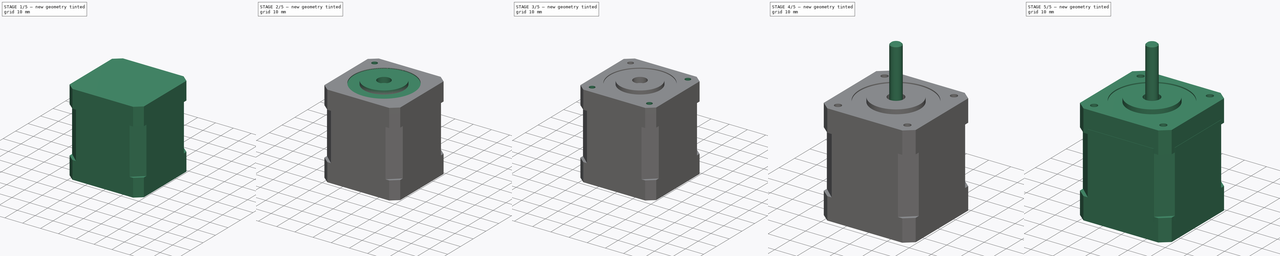
[diagram: build sequence overview — one tinted view per stage of 5, left to right]
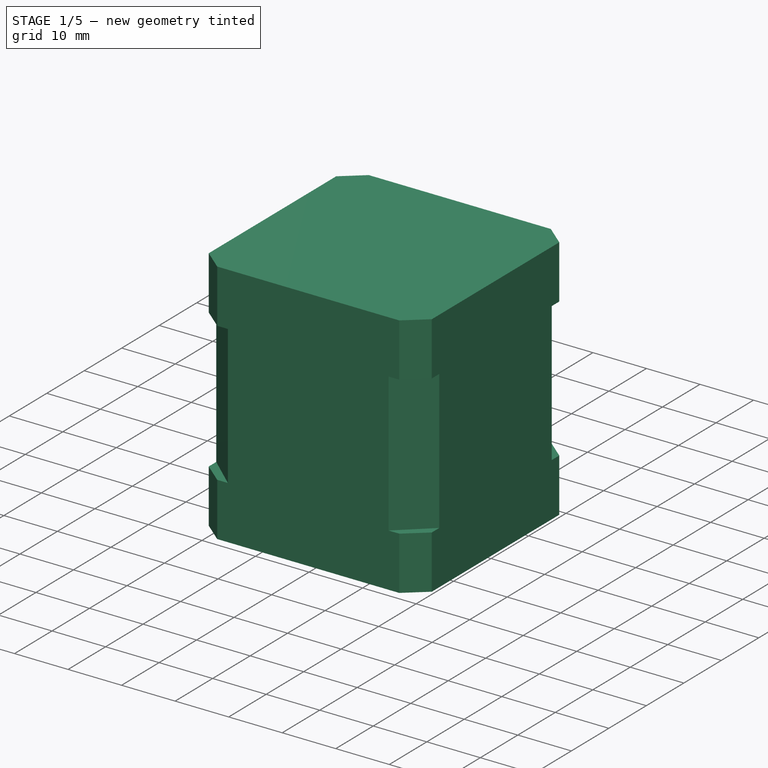
[diagram: stage 1 of 5 — iso view after this stage's code; geometry added in this stage tinted green]
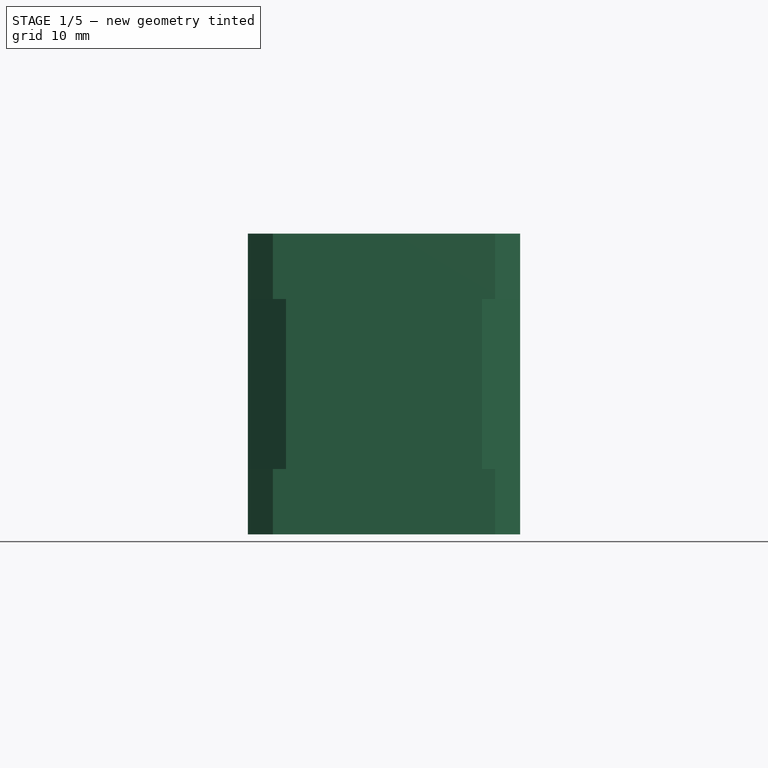
[diagram: stage 1 of 5 — front view after this stage's code; geometry added in this stage tinted green]
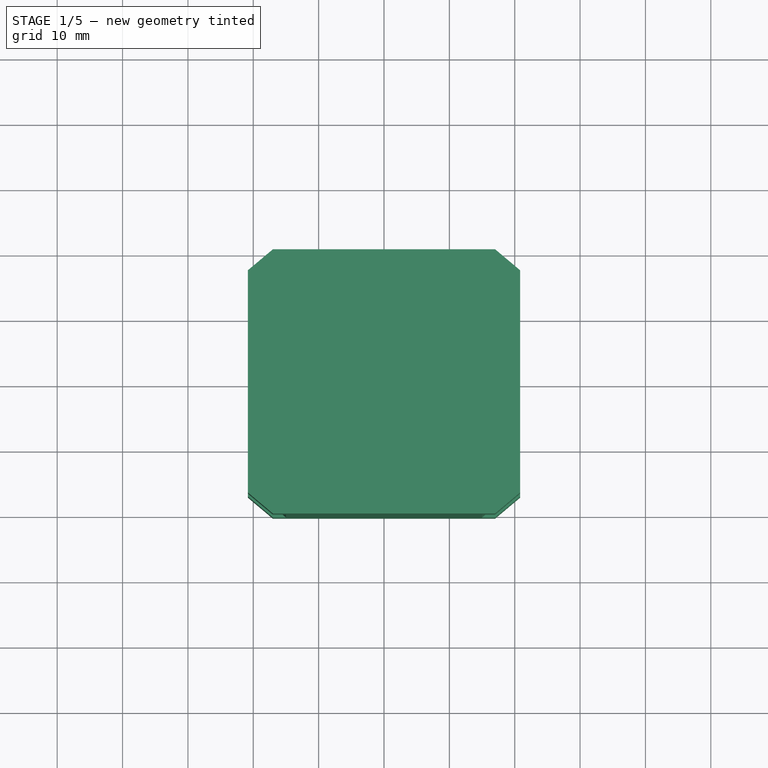
[diagram: stage 1 of 5 — top view after this stage's code; geometry added in this stage tinted green]
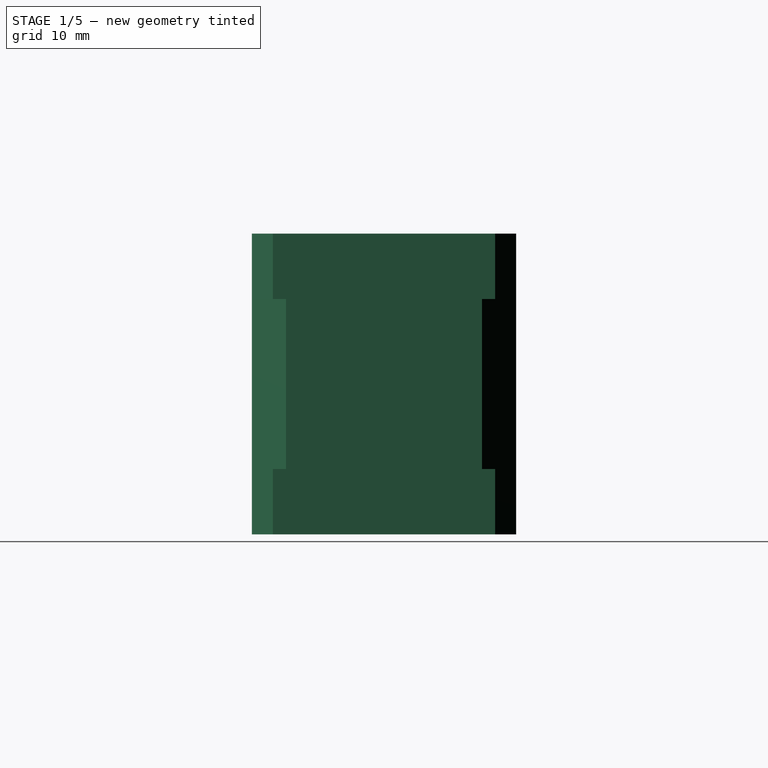
[diagram: stage 1 of 5 — right view after this stage's code; geometry added in this stage tinted green]
FCSTD DOCUMENT  (FreeCAD 0.18R)
Label: stepper-nema17
License: All rights reserved
LicenseURL: http://en.wikipedia.org/wiki/All_rights_reserved
objects: Sketcher::SketchObject×14, PartDesign::Pad×8, PartDesign::Pocket×6, PartDesign::PolarPattern×4, PartDesign::Chamfer×2, PartDesign::Body×1
note: 49 computed .brp shape members not serialized (recipe doc carries the construction recipe); baked Part::Feature solids carry a one-line shape summary decoded from their .brp

FEATURE [Sketcher::SketchObject] Sketch
  MapMode = 5
  Support = -> [XY_Plane]
  sketch-geometry (8):
    g0: LineSegment StartX=-17 StartY=20.2139 StartZ=0 EndX=17 EndY=20.2139 EndZ=0
    g1: LineSegment StartX=17 StartY=20.2139 StartZ=0 EndX=20.8302 EndY=17 EndZ=0
    g2: LineSegment StartX=20.8302 StartY=17 StartZ=0 EndX=20.8302 EndY=-17 EndZ=0
    g3: LineSegment StartX=20.8302 StartY=-17 StartZ=0 EndX=17 EndY=-20.2139 EndZ=0
    g4: LineSegment StartX=17 StartY=-20.2139 StartZ=0 EndX=-17 EndY=-20.2139 EndZ=0
    g5: LineSegment StartX=-17 StartY=-20.2139 StartZ=0 EndX=-20.8302 EndY=-17 EndZ=0
    g6: LineSegment StartX=-20.8302 StartY=-17 StartZ=0 EndX=-20.8302 EndY=17 EndZ=0
    g7: LineSegment StartX=-20.8302 StartY=17 StartZ=0 EndX=-17 EndY=20.2139 EndZ=0
  constraints (25):
    c: Horizontal(g0)
    c: Coincident(g0,g1)
    c: Coincident(g1,g2)
    c: Vertical(g2)
    c: Coincident(g2,g3)
    c: Coincident(g3,g4)
    c: Horizontal(g4)
    c: Coincident(g4,g5)
    c: Coincident(g5,g6)
    c: Vertical(g6)
    c: Coincident(g6,g7)
    c: Coincident(g7,g0)
    c: Symmetric(g0,g0,g-2)
    c: Symmetric(g5,g6,g-1)
    c: Symmetric(g4,g3,g-2)
    c: Symmetric(g2,g1,g-1)
    c: Equal(g0,g4)
    c: DistanceX(g4,g4) = 34
    c: Equal(g2,g6)
    c: DistanceY(g6,g6) = 34
    c: Angle(g6,g7) = 2.26893
    c: Equal(g7,g1)
    c: Equal(g1,g3)
    c: Equal(g3,g5)
    c: Distance(g1) = 5
FEATURE [PartDesign::Pad] Pad  label="Top metal part"
  Length = 10
  Length2 = 100
  Profile = -> Sketch
  Refine = true
  Type = 0
FEATURE [Sketcher::SketchObject] Sketch001
  ExternalGeometry = -> [Pad]
  MapMode = 5
  Placement = pos=(0,0,10) rot=(0,0,1;0rad)
  Support = -> [Pad]
  sketch-geometry (8):
    g0: LineSegment StartX=-20.8302 StartY=15 StartZ=0 EndX=-15 EndY=20.2139 EndZ=0
    g1: LineSegment StartX=-15 StartY=20.2139 StartZ=0 EndX=15 EndY=20.2139 EndZ=0
    g2: LineSegment StartX=15 StartY=20.2139 StartZ=0 EndX=20.8302 EndY=15 EndZ=0
    g3: LineSegment StartX=20.8302 StartY=15 StartZ=0 EndX=20.8302 EndY=-15 EndZ=0
    g4: LineSegment StartX=20.8302 StartY=-15 StartZ=0 EndX=15 EndY=-20.2139 EndZ=0
    g5: LineSegment StartX=15 StartY=-20.2139 StartZ=0 EndX=-15 EndY=-20.2139 EndZ=0
    g6: LineSegment StartX=-15 StartY=-20.2139 StartZ=0 EndX=-20.8302 EndY=-15 EndZ=0
    g7: LineSegment StartX=-20.8302 StartY=-15 StartZ=0 EndX=-20.8302 EndY=15 EndZ=0
  constraints (25):
    c: PointOnObject(g0,g-4)
    c: PointOnObject(g0,g-3)
    c: Coincident(g0,g1)
    c: PointOnObject(g1,g-3)
    c: Coincident(g1,g2)
    c: PointOnObject(g2,g-5)
    c: Coincident(g2,g3)
    c: PointOnObject(g3,g-5)
    c: Coincident(g3,g4)
    c: PointOnObject(g4,g-6)
    c: Coincident(g4,g5)
    c: PointOnObject(g5,g-6)
    c: Coincident(g5,g6)
    c: PointOnObject(g6,g-4)
    c: Coincident(g7,g0)
    c: Vertical(g7)
    c: DistanceY(g0,g-4) = 2
    c: DistanceX(g-3,g0) = 2
    c: DistanceX(g1,g-3) = 2
    c: DistanceY(g2,g-5) = 2
    c: DistanceY(g-5,g3) = 2
    c: DistanceX(g4,g-6) = 2
    c: DistanceX(g-6,g5) = 2
    c: Coincident(g6,g7)
    c: DistanceY(g-4,g6) = 2
FEATURE [PartDesign::Pocket] Pocket  label="2mm Pocket"
  BaseFeature = -> Pad
  Length = 2
  Length2 = 100
  Profile = -> Sketch001
  Refine = true
  Type = 0
FEATURE [Sketcher::SketchObject] Sketch002
  ExternalGeometry = -> [Pocket]
  MapMode = 5
  Placement = pos=(0,0,8) rot=(0,0,1;0rad)
  Support = -> [Pocket]
  sketch-geometry (8):
    g0: LineSegment StartX=-20.8302 StartY=15 StartZ=0 EndX=-15 EndY=20.2139 EndZ=0
    g1: LineSegment StartX=-15 StartY=20.2139 StartZ=0 EndX=15 EndY=20.2139 EndZ=0
    g2: LineSegment StartX=15 StartY=20.2139 StartZ=0 EndX=20.8302 EndY=15 EndZ=0
    g3: LineSegment StartX=20.8302 StartY=15 StartZ=0 EndX=20.8302 EndY=-15 EndZ=0
    g4: LineSegment StartX=20.8302 StartY=-15 StartZ=0 EndX=15 EndY=-20.2139 EndZ=0
    g5: LineSegment StartX=15 StartY=-20.2139 StartZ=0 EndX=-15 EndY=-20.2139 EndZ=0
    g6: LineSegment StartX=-15 StartY=-20.2139 StartZ=0 EndX=-20.8302 EndY=-15 EndZ=0
    g7: LineSegment StartX=-20.8302 StartY=-15 StartZ=0 EndX=-20.8302 EndY=15 EndZ=0
  constraints (20):
    c: Coincident(g0,g1)
    c: Horizontal(g1)
    c: Coincident(g1,g2)
    c: Coincident(g2,g3)
    c: Vertical(g3)
    c: Coincident(g3,g4)
    c: Coincident(g4,g5)
    c: Horizontal(g5)
    c: Coincident(g5,g6)
    c: Coincident(g6,g7)
    c: Coincident(g7,g0)
    c: Vertical(g7)
    c: Coincident(g0,g-3)
    c: Coincident(g0,g-4)
    c: Coincident(g1,g-4)
    c: Coincident(g2,g-6)
    c: Coincident(g3,g-6)
    c: Coincident(g4,g-5)
    c: Coincident(g5,g-5)
    c: Coincident(g6,g-3)
FEATURE [PartDesign::Pad] Pad001  label="Middle black part"
  BaseFeature = -> Pocket
  Length = 28
  Length2 = 100
  Profile = -> Sketch002
  Refine = true
  Type = 0
FEATURE [Sketcher::SketchObject] Sketch003
  ExternalGeometry = -> [Pad001]
  MapMode = 5
  Placement = pos=(0,0,36) rot=(0,0,1;0rad)
  Support = -> [Pad001]
  sketch-geometry (8):
    g0: LineSegment StartX=-20.8302 StartY=17 StartZ=0 EndX=-17 EndY=20.2139 EndZ=0
    g1: LineSegment StartX=-17 StartY=20.2139 StartZ=0 EndX=17 EndY=20.2139 EndZ=0
    g2: LineSegment StartX=17 StartY=20.2139 StartZ=0 EndX=20.8302 EndY=17 EndZ=0
    g3: LineSegment StartX=20.8302 StartY=17 StartZ=0 EndX=20.8302 EndY=-17 EndZ=0
    g4: LineSegment StartX=20.8302 StartY=-17 StartZ=0 EndX=17 EndY=-20.2139 EndZ=0
    g5: LineSegment StartX=17 StartY=-20.2139 StartZ=0 EndX=-17 EndY=-20.2139 EndZ=0
    g6: LineSegment StartX=-17 StartY=-20.2139 StartZ=0 EndX=-20.8302 EndY=-17 EndZ=0
    g7: LineSegment StartX=-20.8302 StartY=-17 StartZ=0 EndX=-20.8302 EndY=17 EndZ=0
  constraints (19):
    c: Coincident(g0,g1)
    c: Horizontal(g1)
    c: Coincident(g1,g2)
    c: Coincident(g2,g3)
    c: Vertical(g3)
    c: Coincident(g3,g4)
    c: Coincident(g4,g5)
    c: Horizontal(g5)
    c: Coincident(g5,g6)
    c: Coincident(g6,g7)
    c: Coincident(g7,g0)
    c: Coincident(g0,g-3)
    c: Coincident(g0,g-3)
    c: Coincident(g1,g-4)
    c: Coincident(g2,g-4)
    c: Coincident(g3,g-5)
    c: Coincident(g4,g-5)
    c: Coincident(g6,g-6)
    c: Coincident(g5,g-6)
FEATURE [PartDesign::Pad] Pad002  label="Bottom metal part"
  BaseFeature = -> Pad001
  Length = 10
  Length2 = 100
  Profile = -> Sketch003
  Refine = true
  Type = 0
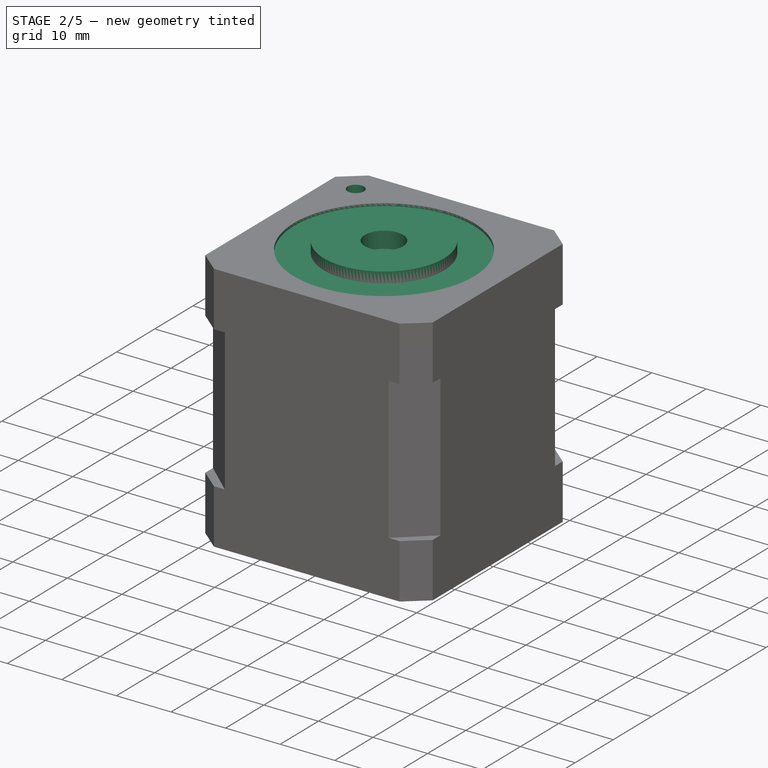
[diagram: stage 2 of 5 — iso view after this stage's code; geometry added in this stage tinted green]
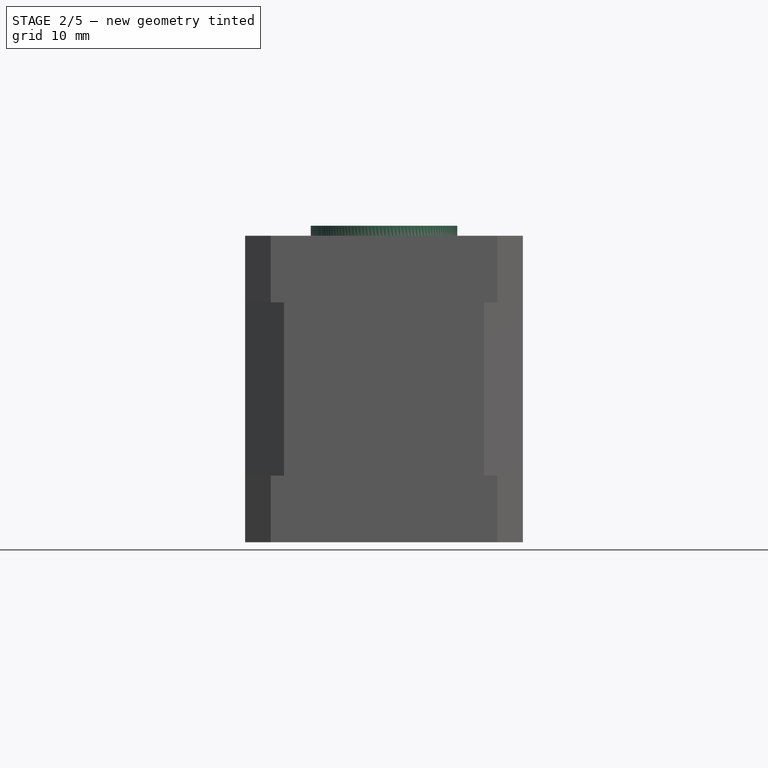
[diagram: stage 2 of 5 — front view after this stage's code; geometry added in this stage tinted green]
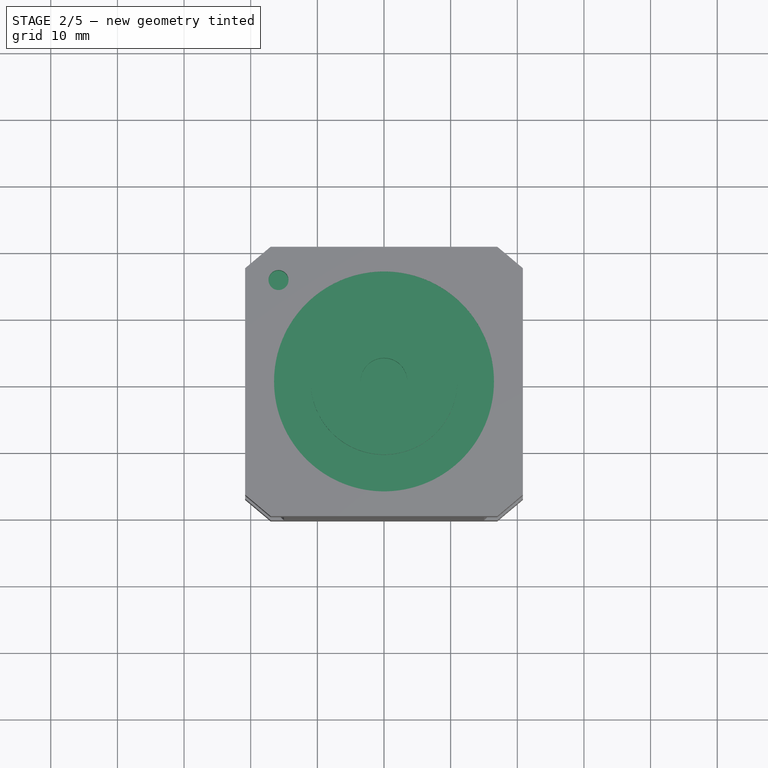
[diagram: stage 2 of 5 — top view after this stage's code; geometry added in this stage tinted green]
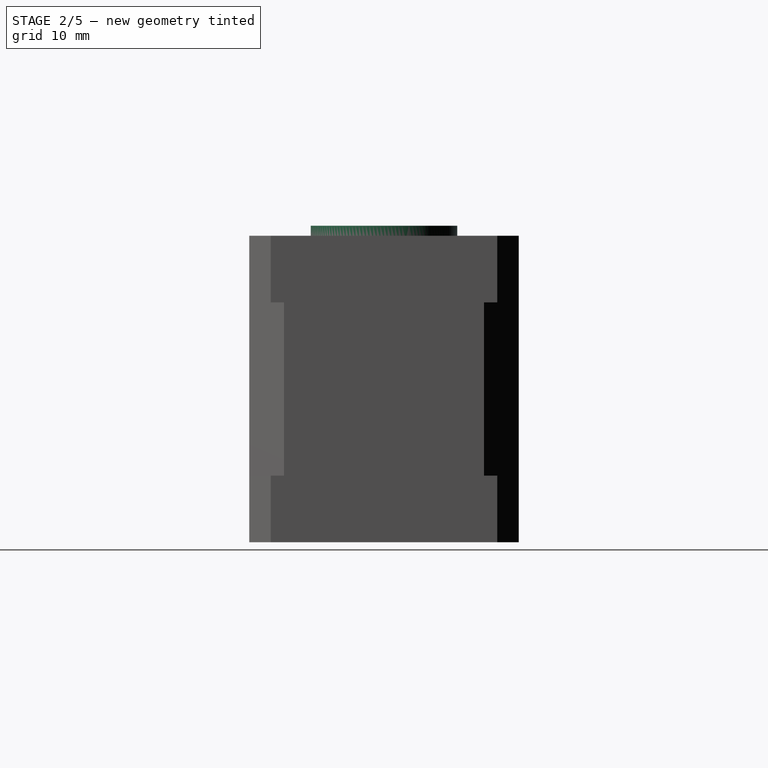
[diagram: stage 2 of 5 — right view after this stage's code; geometry added in this stage tinted green]
FEATURE [Sketcher::SketchObject] Sketch004
  MapMode = 5
  Placement = pos=(0,0,46) rot=(0,0,1;0rad)
  Support = -> [Pad002]
  sketch-geometry (1):
    g0: Circle CenterX=0 CenterY=0 CenterZ=0 NormalX=0 NormalY=0 NormalZ=1 AngleXU=0 Radius=16.5
  constraints (2):
    c: Coincident(g0,g-1)
    c: Radius(g0) = 16.5
FEATURE [PartDesign::Pocket] Pocket001  label="Top big circle"
  BaseFeature = -> Pad002
  Length = 0.5
  Length2 = 100
  Profile = -> Sketch004
  Refine = true
  Type = 0
FEATURE [Sketcher::SketchObject] Sketch005
  MapMode = 5
  Placement = pos=(0,0,45.5) rot=(0,0,1;0rad)
  Support = -> [Pocket001]
  sketch-geometry (1):
    g0: Circle CenterX=0 CenterY=0 CenterZ=0 NormalX=0 NormalY=0 NormalZ=1 AngleXU=0 Radius=11
  constraints (2):
    c: Coincident(g0,g-1)
    c: Radius(g0) = 11
FEATURE [PartDesign::Pad] Pad003  label="Top small circle"
  BaseFeature = -> Pocket001
  Length = 2
  Length2 = 100
  Profile = -> Sketch005
  Refine = true
  Type = 0
FEATURE [Sketcher::SketchObject] Sketch006
  MapMode = 5
  Placement = pos=(0,0,47.5) rot=(0,0,1;0rad)
  Support = -> [Pad003]
  sketch-geometry (1):
    g0: Circle CenterX=0 CenterY=0 CenterZ=0 NormalX=0 NormalY=0 NormalZ=1 AngleXU=0 Radius=3.5
  constraints (2):
    c: Coincident(g0,g-1)
    c: Radius(g0) = 3.5
FEATURE [PartDesign::Pocket] Pocket002  label="Rotor pocket"
  BaseFeature = -> Pad003
  Length = 3
  Length2 = 100
  Profile = -> Sketch006
  Refine = true
  Type = 0
FEATURE [Sketcher::SketchObject] Sketch007
  ExternalGeometry = -> [Pocket002]
  MapMode = 5
  Placement = pos=(0,0,46) rot=(0,0,1;0rad)
  Support = -> [Pocket002]
  sketch-geometry (1):
    g0: Circle CenterX=-15.8302 CenterY=15.2139 CenterZ=0 NormalX=0 NormalY=0 NormalZ=1 AngleXU=0 Radius=1.5
  constraints (3):
    c: Radius(g0) = 1.5
    c: DistanceY(g0,g-3) = 5
    c: DistanceX(g-4,g0) = 5
FEATURE [PartDesign::Pocket] Pocket003  label="Top screw pocket"
  BaseFeature = -> Pocket002
  Length = 5
  Length2 = 100
  Profile = -> Sketch007
  Refine = true
  Type = 0
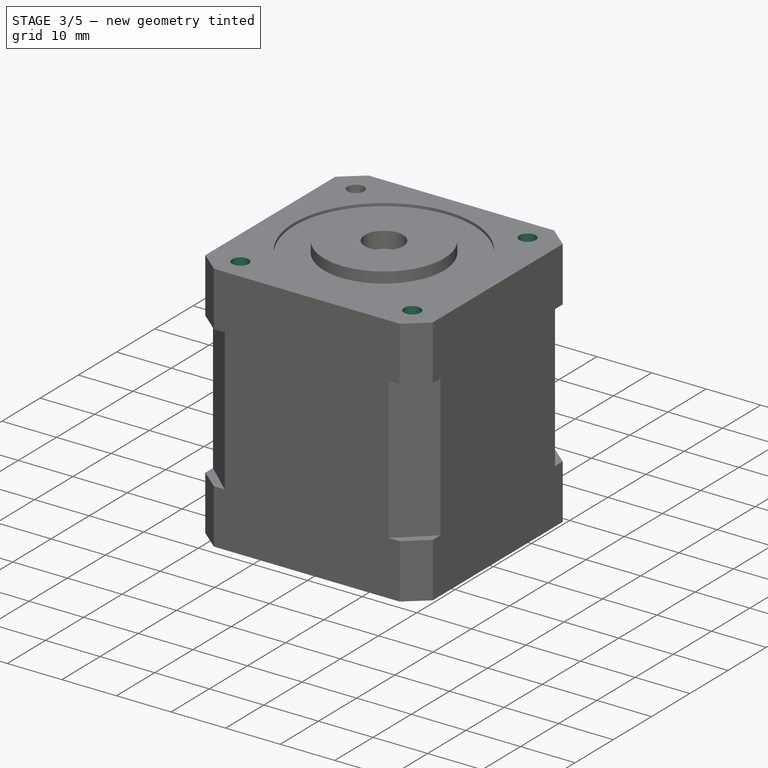
[diagram: stage 3 of 5 — iso view after this stage's code; geometry added in this stage tinted green]
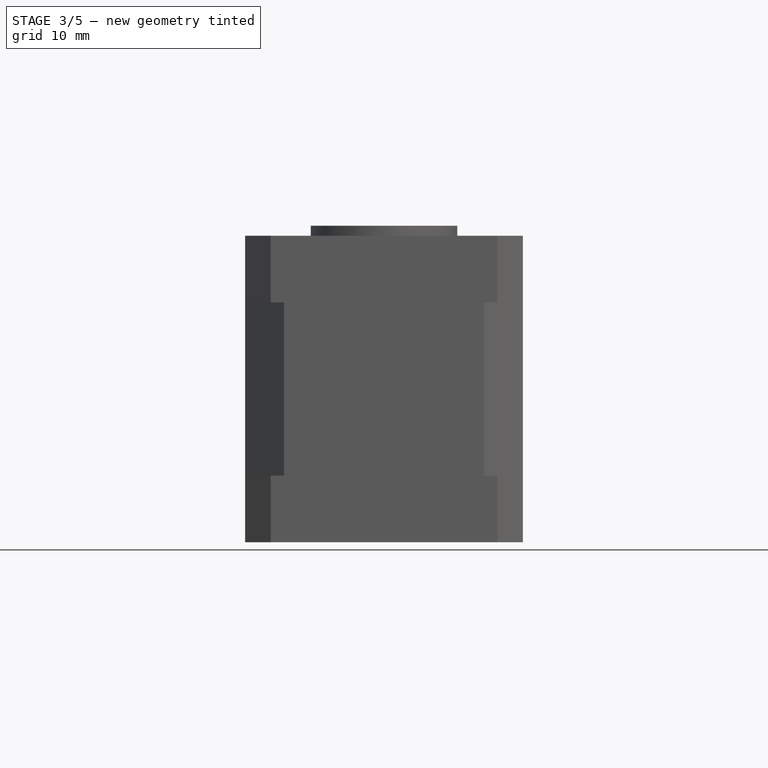
[diagram: stage 3 of 5 — front view after this stage's code; geometry added in this stage tinted green]
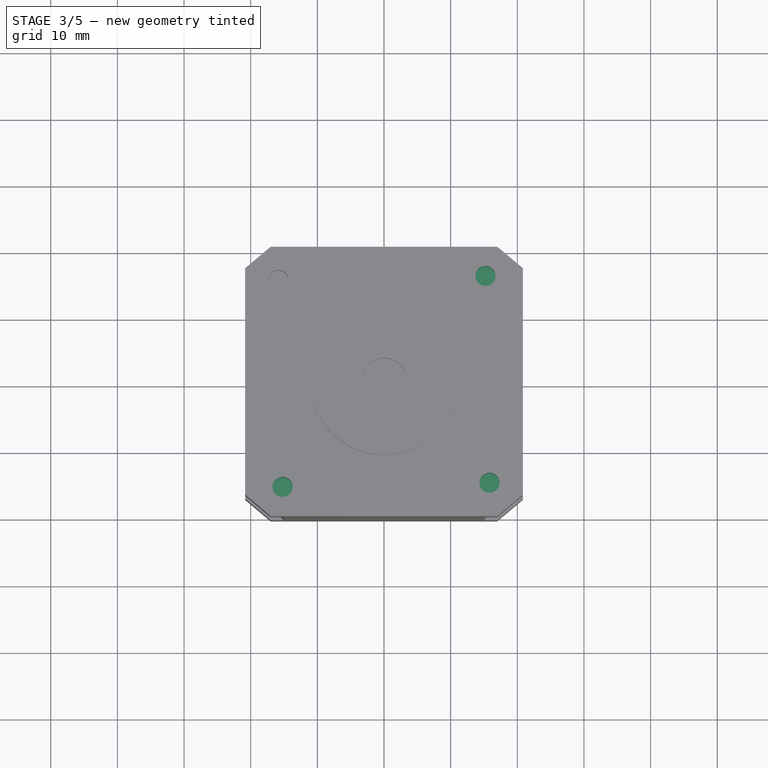
[diagram: stage 3 of 5 — top view after this stage's code; geometry added in this stage tinted green]
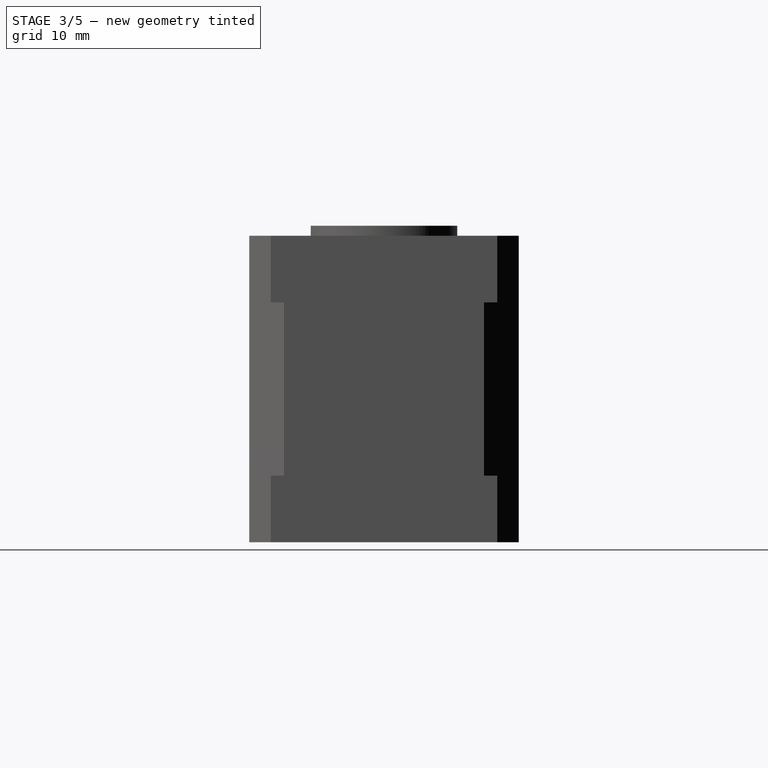
[diagram: stage 3 of 5 — right view after this stage's code; geometry added in this stage tinted green]
FEATURE [PartDesign::PolarPattern] PolarPattern
  Angle = 360
  Axis = -> Sketch007 [N_Axis]
  BaseFeature = -> Pocket003
  Occurrences = 4
  Originals = -> [Pocket003]
  Refine = true
FEATURE [Sketcher::SketchObject] Sketch008
  ExternalGeometry = -> [PolarPattern]
  MapMode = 5
  Placement = pos=(0,0,0) rot=(1,0,0;3.14159rad)
  Support = -> [PolarPattern]
  sketch-geometry (1):
    g0: Circle CenterX=-15.8302 CenterY=15.2139 CenterZ=0 NormalX=0 NormalY=0 NormalZ=1 AngleXU=0 Radius=2.8
  constraints (3):
    c: Radius(g0) = 2.8
    c: DistanceY(g0,g-3) = 5
    c: DistanceX(g-4,g0) = 5
FEATURE [PartDesign::Pocket] Pocket004  label="Bottom screw pocket"
  BaseFeature = -> PolarPattern
  Length = 2
  Length2 = 100
  Profile = -> Sketch008
  Refine = true
  Type = 0
FEATURE [PartDesign::PolarPattern] PolarPattern001
  Angle = 360
  Axis = -> Sketch008 [N_Axis]
  BaseFeature = -> Pocket004
  Occurrences = 4
  Originals = -> [Pocket004]
  Refine = true
FEATURE [Sketcher::SketchObject] Sketch009
  MapMode = 5
  Placement = pos=(0,0,0) rot=(1,0,0;3.14159rad)
  Support = -> [PolarPattern001]
  sketch-geometry (1):
    g0: Circle CenterX=0 CenterY=0 CenterZ=0 NormalX=0 NormalY=0 NormalZ=1 AngleXU=0 Radius=3.25
  constraints (2):
    c: Coincident(g0,g-1)
    c: Radius(g0) = 3.25
FEATURE [PartDesign::Pocket] Pocket005  label="Bottom hole pocket"
  BaseFeature = -> PolarPattern001
  Length = 3
  Length2 = 100
  Profile = -> Sketch009
  Refine = true
  Type = 0
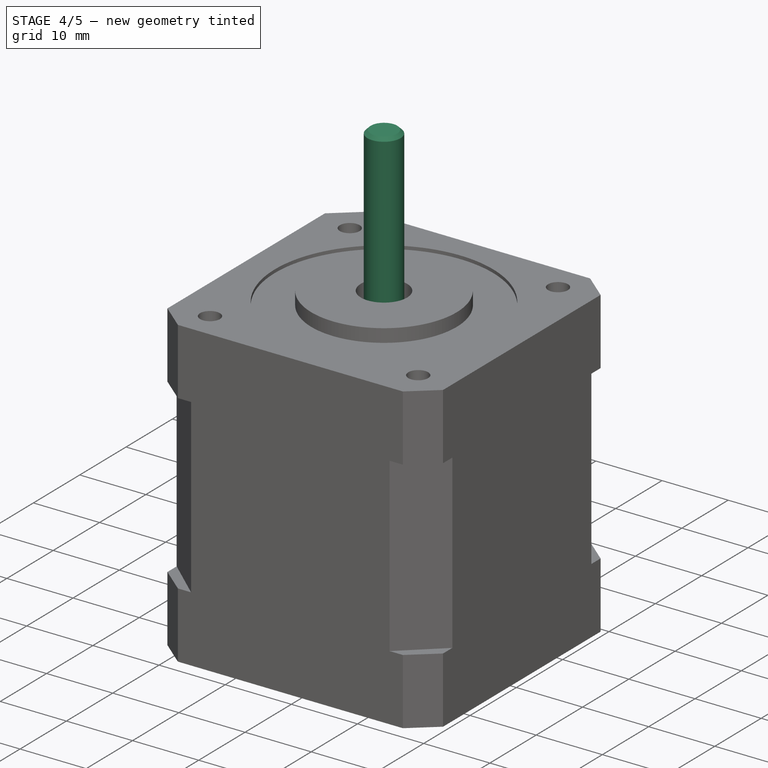
[diagram: stage 4 of 5 — iso view after this stage's code; geometry added in this stage tinted green]
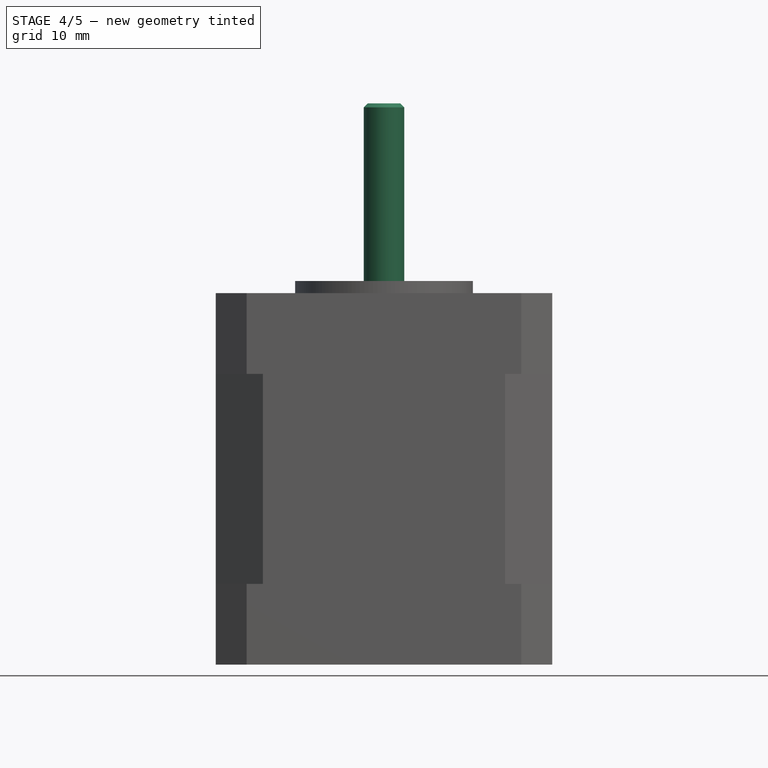
[diagram: stage 4 of 5 — front view after this stage's code; geometry added in this stage tinted green]
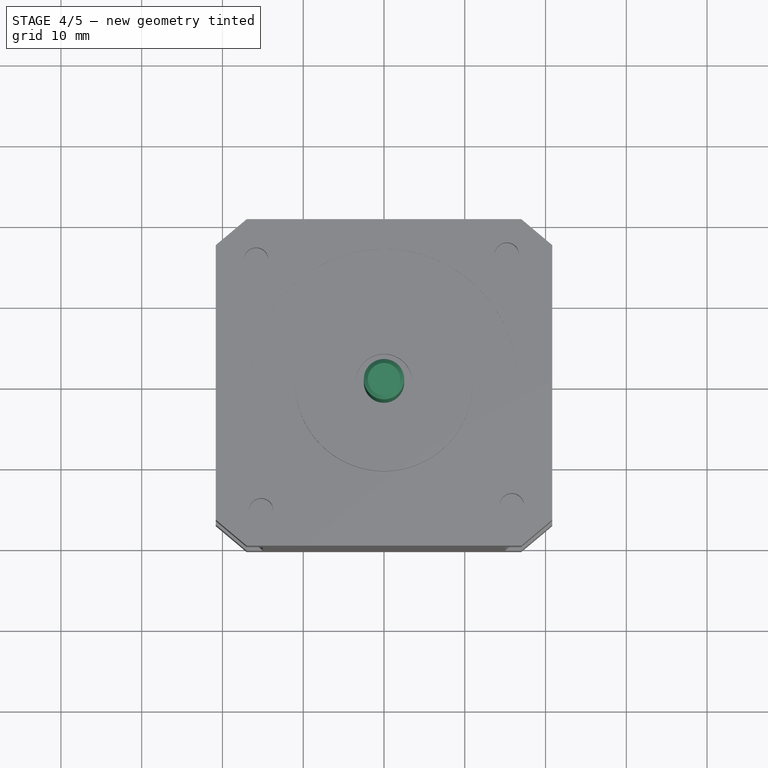
[diagram: stage 4 of 5 — top view after this stage's code; geometry added in this stage tinted green]
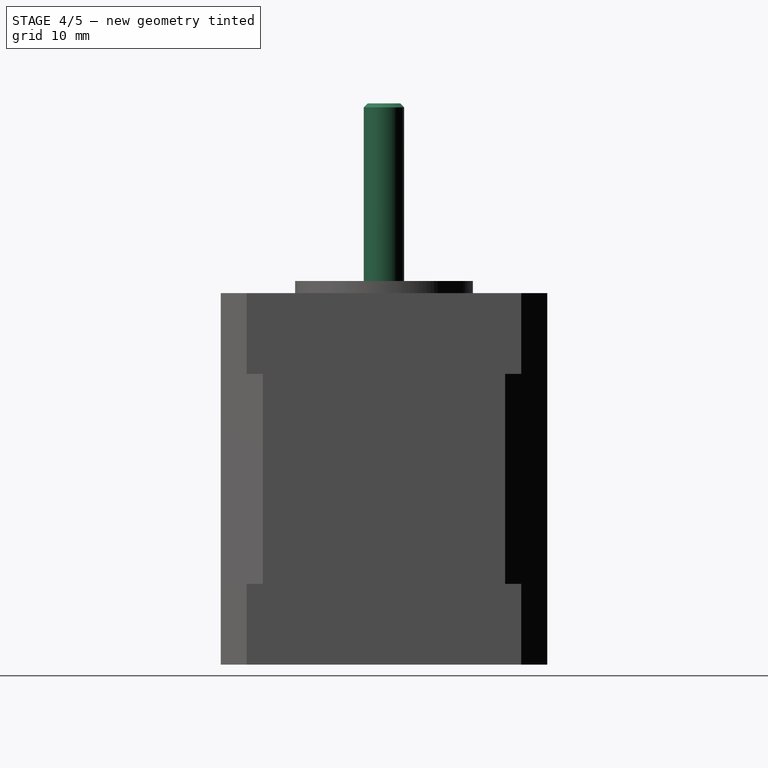
[diagram: stage 4 of 5 — right view after this stage's code; geometry added in this stage tinted green]
FEATURE [Sketcher::SketchObject] Sketch010
  MapMode = 5
  Placement = pos=(0,0,3) rot=(1,0,0;3.14159rad)
  Support = -> [Pocket005]
  sketch-geometry (1):
    g0: Circle CenterX=0 CenterY=0 CenterZ=0 NormalX=0 NormalY=0 NormalZ=1 AngleXU=0 Radius=2.5
  constraints (2):
    c: Coincident(g0,g-1)
    c: Radius(g0) = 2.5
FEATURE [PartDesign::Pad] Pad004  label="Bottom rotor part"
  BaseFeature = -> Pocket005
  Length = 1.3
  Length2 = 100
  Profile = -> Sketch010
  Refine = true
  Type = 0
FEATURE [PartDesign::Chamfer] Chamfer
  Base = -> Pad004 [Edge105]
  BaseFeature = -> Pad004
  Size = 0.5
FEATURE [Sketcher::SketchObject] Sketch011
  MapMode = 5
  Placement = pos=(0,0,44.5) rot=(0,0,1;0rad)
  Support = -> [Chamfer]
  sketch-geometry (1):
    g0: Circle CenterX=0 CenterY=0 CenterZ=0 NormalX=0 NormalY=0 NormalZ=1 AngleXU=0 Radius=2.5
  constraints (2):
    c: Coincident(g0,g-1)
    c: Radius(g0) = 2.5
FEATURE [PartDesign::Pad] Pad005  label="Top rotor part"
  BaseFeature = -> Chamfer
  Length = 25
  Length2 = 100
  Profile = -> Sketch011
  Refine = true
  Type = 0
FEATURE [PartDesign::Chamfer] Chamfer001
  Base = -> Pad005 [Edge116]
  BaseFeature = -> Pad005
  Size = 0.5
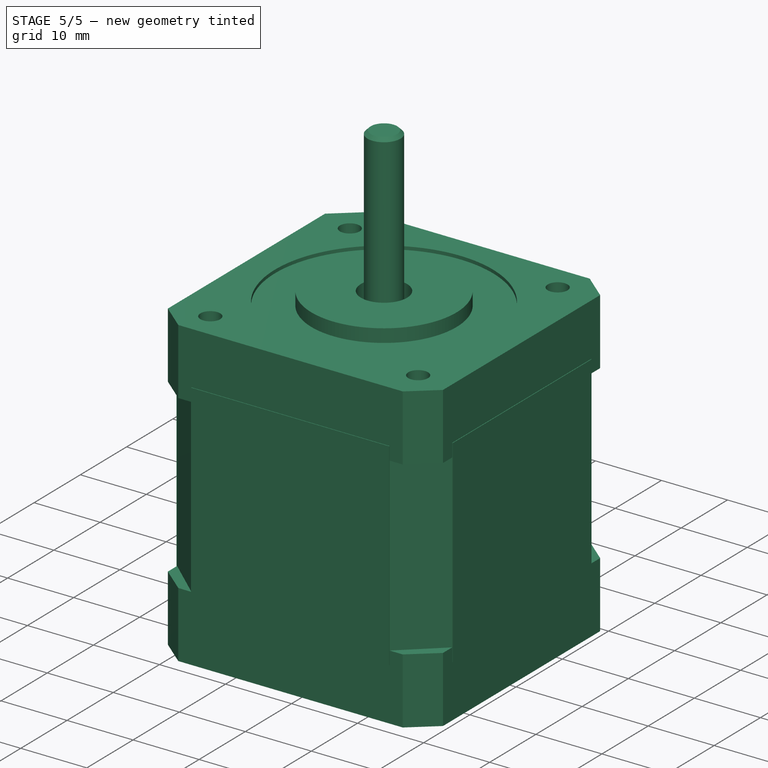
[diagram: stage 5 of 5 — iso view after this stage's code; geometry added in this stage tinted green]
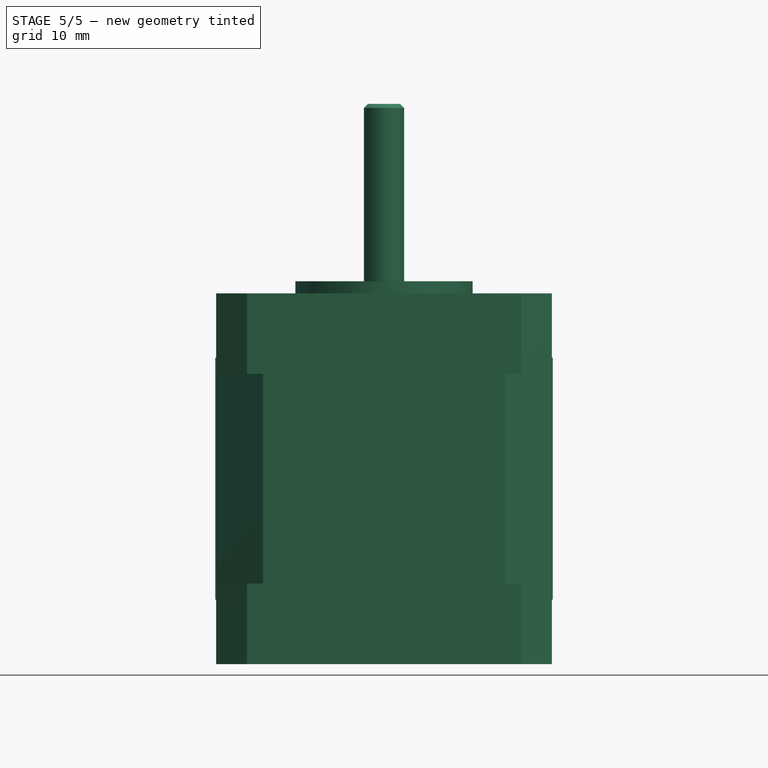
[diagram: stage 5 of 5 — front view after this stage's code; geometry added in this stage tinted green]
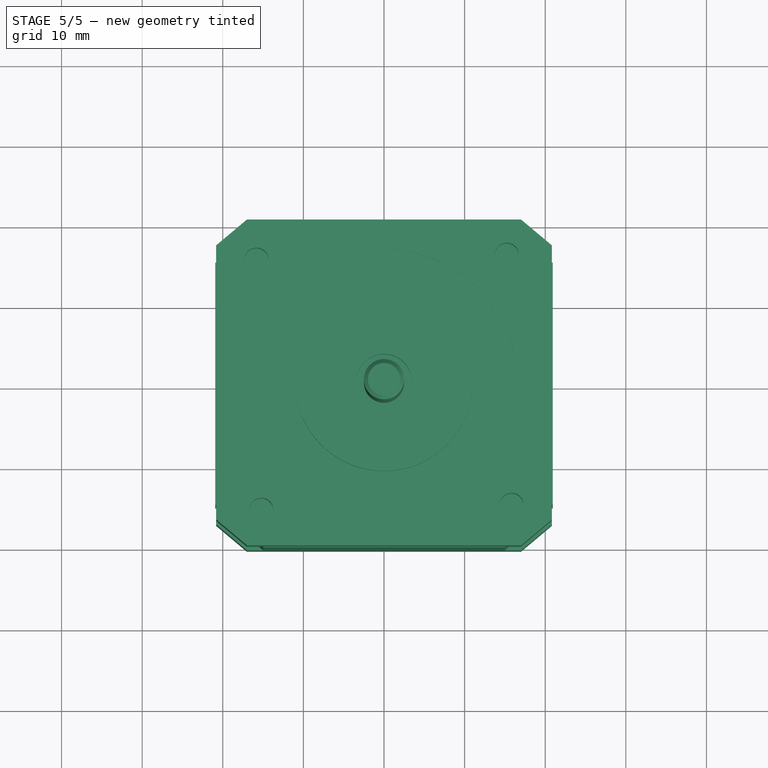
[diagram: stage 5 of 5 — top view after this stage's code; geometry added in this stage tinted green]
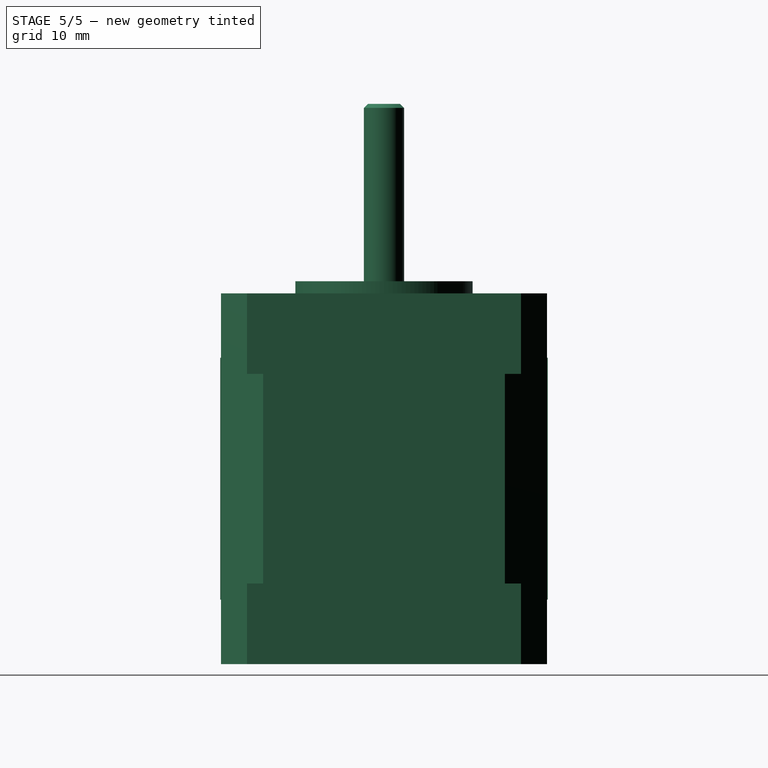
[diagram: stage 5 of 5 — right view after this stage's code; geometry added in this stage tinted green]
FEATURE [Sketcher::SketchObject] Sketch012
  ExternalGeometry = -> [Chamfer001]
  MapMode = 5
  Placement = pos=(0,-20.2139,0) rot=(1,0,0;1.5708rad)
  Support = -> [Chamfer001]
  sketch-geometry (4):
    g0: LineSegment StartX=-15 StartY=38 StartZ=0 EndX=15 EndY=38 EndZ=0
    g1: LineSegment StartX=15 StartY=38 StartZ=0 EndX=15 EndY=8 EndZ=0
    g2: LineSegment StartX=15 StartY=8 StartZ=0 EndX=-15 EndY=8 EndZ=0
    g3: LineSegment StartX=-15 StartY=8 StartZ=0 EndX=-15 EndY=38 EndZ=0
  constraints (12):
    c: Coincident(g0,g1)
    c: Coincident(g1,g2)
    c: Coincident(g2,g3)
    c: Coincident(g3,g0)
    c: Horizontal(g0)
    c: Horizontal(g2)
    c: Vertical(g1)
    c: Vertical(g3)
    c: DistanceX(g0,g0) = 30
    c: Symmetric(g0,g0,g-2)
    c: DistanceY(g2,g0) = 30
    c: DistanceY(g1,g-4) = 2
FEATURE [PartDesign::Pad] Pad006  label="Black half side pad"
  BaseFeature = -> Chamfer001
  Length = 0.1
  Length2 = 100
  Profile = -> Sketch012
  Refine = true
  Type = 0
FEATURE [PartDesign::PolarPattern] PolarPattern002
  Angle = 360
  Axis = -> Z_Axis
  BaseFeature = -> Pad006
  Occurrences = 2
  Originals = -> [Pad006]
  Refine = true
  Reversed = true
FEATURE [Sketcher::SketchObject] Sketch013
  ExternalGeometry = -> [PolarPattern002]
  MapMode = 5
  Placement = pos=(20.8302,0,0) rot=(0.57735,0.57735,0.57735;2.0944rad)
  Support = -> [PolarPattern002]
  sketch-geometry (4):
    g0: LineSegment StartX=-15 StartY=38 StartZ=0 EndX=15 EndY=38 EndZ=0
    g1: LineSegment StartX=15 StartY=38 StartZ=0 EndX=15 EndY=8 EndZ=0
    g2: LineSegment StartX=15 StartY=8 StartZ=0 EndX=-15 EndY=8 EndZ=0
    g3: LineSegment StartX=-15 StartY=8 StartZ=0 EndX=-15 EndY=38 EndZ=0
  constraints (12):
    c: Coincident(g0,g1)
    c: Coincident(g1,g2)
    c: Coincident(g2,g3)
    c: Coincident(g3,g0)
    c: Horizontal(g0)
    c: Horizontal(g2)
    c: Vertical(g1)
    c: Vertical(g3)
    c: DistanceX(g0,g0) = 30
    c: Symmetric(g0,g0,g-2)
    c: DistanceY(g3,g3) = 30
    c: DistanceY(g1,g-4) = 2
FEATURE [PartDesign::Pad] Pad007  label="Black half 2 pad"
  BaseFeature = -> PolarPattern002
  Length = 0.1
  Length2 = 100
  Profile = -> Sketch013
  Refine = true
  Type = 0
FEATURE [PartDesign::PolarPattern] PolarPattern003
  Angle = 360
  Axis = -> Z_Axis
  BaseFeature = -> Pad007
  Occurrences = 2
  Originals = -> [Pad007]
  Refine = true
FEATURE [PartDesign::Body] Body  label="stepper-nema17"
  Group = -> [Sketch,Pad,Sketch001,Pocket,Sketch002,Pad001,Sketch003,Pad002,Sketch004,Pocket001,Sketch005,Pad003,Sketch006,Pocket002,Sketch007,Pocket003,PolarPattern,Sketch008,Pocket004,PolarPattern001,Sketch009,Pocket005,Sketch010,Pad004,Chamfer,Sketch011,Pad005,Chamfer001,Sketch012,Pad006,PolarPattern002,Sketch013,Pad007,PolarPattern003]
  Origin = -> Origin
  Tip = -> PolarPattern003
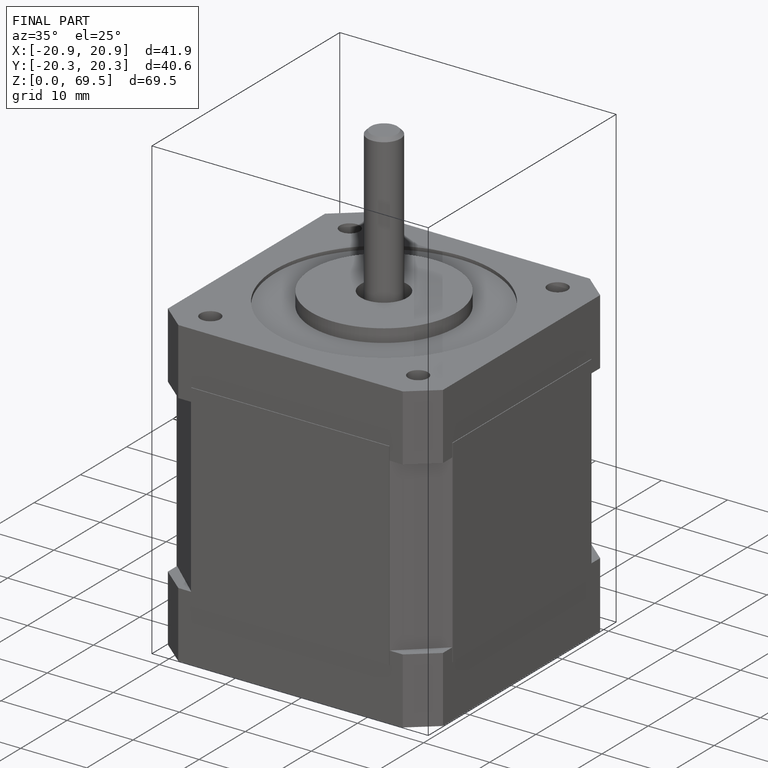
[diagram: finished part — iso view with bounding-box wireframe]
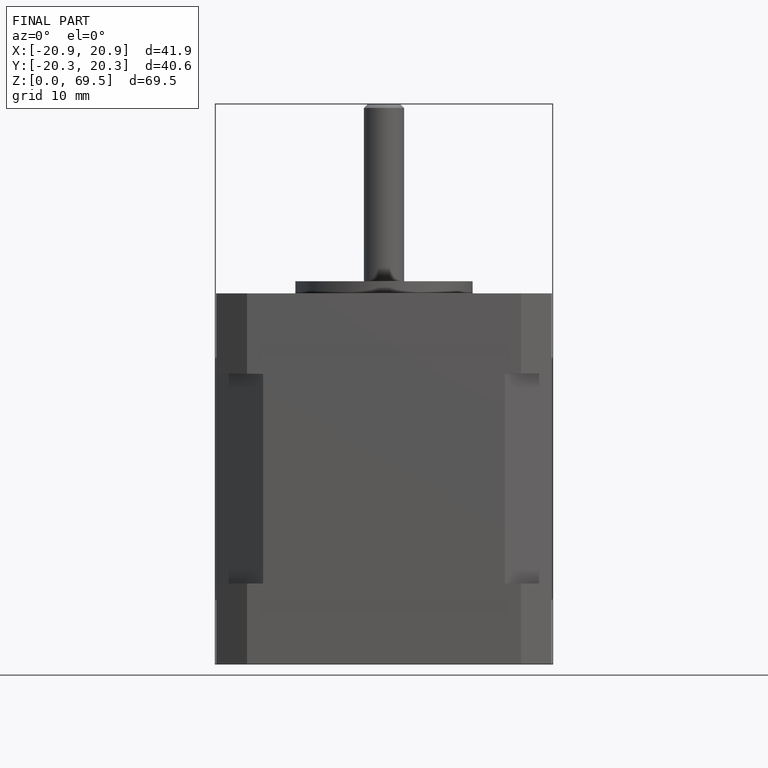
[diagram: finished part — front view with bounding-box wireframe]
